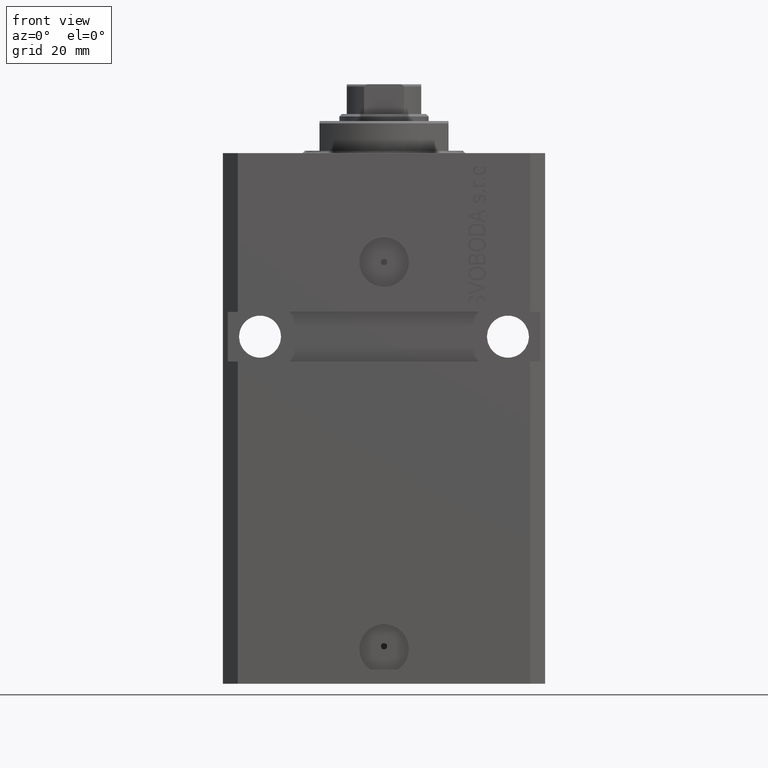
[diagram: clean part render]
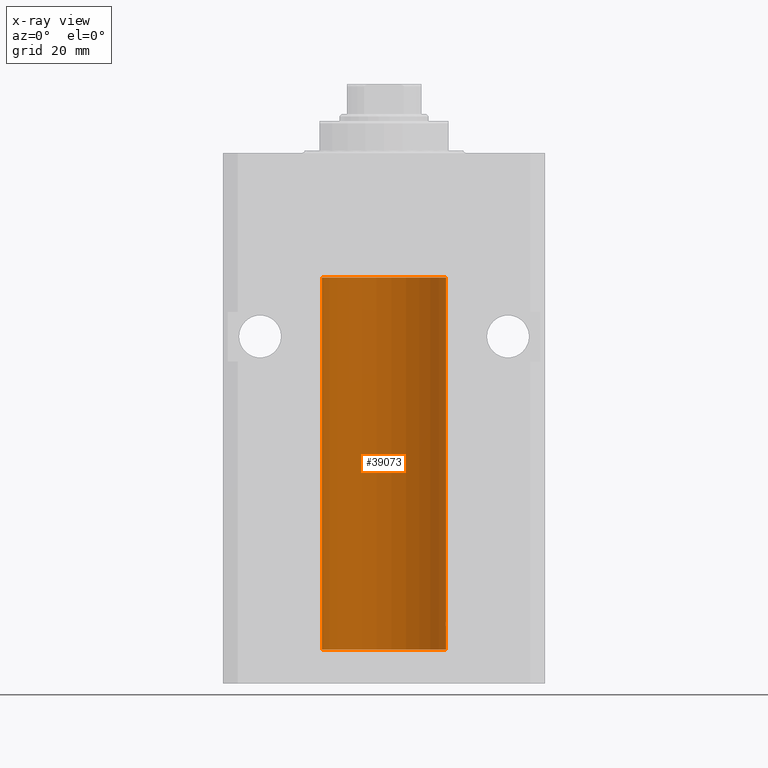
[diagram: x-ray — body ghosted, one internal face saturated and labeled with its STEP entity id]
A machine part, front view, then the same camera in x-ray: the body is ghosted and one INTERNAL B-rep face — a face not visible from any outside direction — is saturated and labeled: STEP entity #39073.
In plain terms, the highlighted cylindrical surface (partial cylindrical patch) has radius 12.5 mm, axis along (0, 0, 1).
Its self-contained STEP definition (entity closure, byte-faithful):
#142 = CARTESIAN_POINT ( 'NONE',  ( 12.48436522214846711, 0.6250000000078848039, -94.99999999999923261 ) ) ;
#1116 = CARTESIAN_POINT ( 'NONE',  ( 12.50000000000017941, 3.868073689162038701E-13, -94.37499999999640465 ) ) ;
#1170 = EDGE_CURVE ( 'NONE', #40725, #36631, #4375, .T. ) ;
#2116 = ORIENTED_EDGE ( 'NONE', *, *, #25616, .T. ) ;
#2447 = CARTESIAN_POINT ( 'NONE',  ( -12.50000000000000000, 1.530808498934191521E-15, -100.0999999999999943 ) ) ;
#3059 = CARTESIAN_POINT ( 'NONE',  ( -12.50000000000000000, 1.530808498934191521E-15, -100.0999999999999943 ) ) ;
#3258 = CARTESIAN_POINT ( 'NONE',  ( 12.49631206032076136, 0.3252904079142934779, -94.44139700214928723 ) ) ;
#4375 = CIRCLE ( 'NONE', #8196, 12.50000000000000000 ) ;
#4545 = EDGE_CURVE ( 'NONE', #15957, #42594, #45645, .T. ) ;
#5693 = CARTESIAN_POINT ( 'NONE',  ( 12.50000000000000000, -1.836039810331332019E-15, -95.62500000000000000 ) ) ;
#6912 = DIRECTION ( 'NONE',  ( 1.000000000000000000, 0.000000000000000000, 0.000000000000000000 ) ) ;
#6987 = VECTOR ( 'NONE', #24875, 1000.000000000000000 ) ;
#7072 = DIRECTION ( 'NONE',  ( -0.000000000000000000, -0.000000000000000000, 1.000000000000000000 ) ) ;
#7140 = CARTESIAN_POINT ( 'NONE',  ( 12.49915742890631876, 0.1636982395582385896, -95.60872397847028026 ) ) ;
#7952 = DIRECTION ( 'NONE',  ( -0.000000000000000000, -0.000000000000000000, 1.000000000000000000 ) ) ;
#8196 = AXIS2_PLACEMENT_3D ( 'NONE', #13536, #31457, #42638 ) ;
#9362 = VECTOR ( 'NONE', #23758, 1000.000000000000000 ) ;
#9445 = VERTEX_POINT ( 'NONE', #5693 ) ;
#10190 = CARTESIAN_POINT ( 'NONE',  ( 12.49999999999999822, 0.1631389616600901760, -94.37500000000024158 ) ) ;
#10733 = DIRECTION ( 'NONE',  ( 0.000000000000000000, 0.000000000000000000, 1.000000000000000000 ) ) ;
#10888 = B_SPLINE_CURVE_WITH_KNOTS ( 'NONE', 3,
 ( #46345, #20384, #7140, #27996, #31579, #12956, #36247, #23961 ),
 .UNSPECIFIED., .F., .F.,
 ( 4, 2, 2, 4 ),
 ( 1.784246692340212412E-18, 0.0002443481056285665750, 0.0004886962112571313068, 0.0009773924225142606621 ),
 .UNSPECIFIED. ) ;
#11768 = CARTESIAN_POINT ( 'NONE',  ( 12.50000000000000000, 0.000000000000000000, -100.0999999999999943 ) ) ;
#12956 = CARTESIAN_POINT ( 'NONE',  ( 12.48809900631782099, 0.5573988467445673001, -95.32640147935475738 ) ) ;
#13536 = CARTESIAN_POINT ( 'NONE',  ( 0.000000000000000000, 0.000000000000000000, -100.0999999999999943 ) ) ;
#15957 = VERTEX_POINT ( 'NONE', #37157 ) ;
#16410 = ORIENTED_EDGE ( 'NONE', *, *, #37849, .T. ) ;
#16892 = EDGE_CURVE ( 'NONE', #33578, #15957, #39929, .T. ) ;
#17825 = CARTESIAN_POINT ( 'NONE',  ( 0.000000000000000000, 0.000000000000000000, -100.0999999999999943 ) ) ;
#17827 = CARTESIAN_POINT ( 'NONE',  ( 12.48436522214888100, 0.6249999999996834754, -94.91847339462351840 ) ) ;
#18050 = FACE_OUTER_BOUND ( 'NONE', #45383, .T. ) ;
#18328 = ORIENTED_EDGE ( 'NONE', *, *, #44283, .T. ) ;
#20384 = CARTESIAN_POINT ( 'NONE',  ( 12.49999999999999822, 0.08262306818362624705, -95.62499999999998579 ) ) ;
#22669 = ORIENTED_EDGE ( 'NONE', *, *, #46392, .F. ) ;
#23054 = CARTESIAN_POINT ( 'NONE',  ( 12.50000000000000000, 0.000000000000000000, -100.0999999999999943 ) ) ;
#23758 = DIRECTION ( 'NONE',  ( -0.000000000000000000, -0.000000000000000000, 1.000000000000000000 ) ) ;
#23961 = CARTESIAN_POINT ( 'NONE',  ( 12.48436522214846711, 0.6250000000078848039, -94.99999999999923261 ) ) ;
#24523 = DIRECTION ( 'NONE',  ( 1.000000000000000000, 0.000000000000000000, 0.000000000000000000 ) ) ;
#24875 = DIRECTION ( 'NONE',  ( -0.000000000000000000, -0.000000000000000000, 1.000000000000000000 ) ) ;
#24994 = CARTESIAN_POINT ( 'NONE',  ( 12.49012055744648997, 0.5002956126656082914, -94.61641710202405875 ) ) ;
#25078 = AXIS2_PLACEMENT_3D ( 'NONE', #36729, #10733, #6912 ) ;
#25616 = EDGE_CURVE ( 'NONE', #9445, #43948, #10888, .T. ) ;
#26577 = CARTESIAN_POINT ( 'NONE',  ( 12.48436522214846711, 0.6250000000078848039, -94.99999999999923261 ) ) ;
#27583 = ORIENTED_EDGE ( 'NONE', *, *, #1170, .F. ) ;
#27996 = CARTESIAN_POINT ( 'NONE',  ( 12.49625698805481022, 0.3151108292486944906, -95.54593695688171806 ) ) ;
#28566 = CARTESIAN_POINT ( 'NONE',  ( 12.48810305280568222, 0.5461368461738485003, -94.68525466142676805 ) ) ;
#28798 = CYLINDRICAL_SURFACE ( 'NONE', #35846, 12.50000000000000000 ) ;
#30245 = ORIENTED_EDGE ( 'NONE', *, *, #4545, .T. ) ;
#31145 = LINE ( 'NONE', #23054, #9362 ) ;
#31457 = DIRECTION ( 'NONE',  ( 0.000000000000000000, 0.000000000000000000, 1.000000000000000000 ) ) ;
#31579 = CARTESIAN_POINT ( 'NONE',  ( 12.49421963472024721, 0.3844519291903572555, -95.49947303647047647 ) ) ;
#32841 = CARTESIAN_POINT ( 'NONE',  ( 12.48520578595314845, 0.6087855079133740466, -94.83656717509346379 ) ) ;
#33578 = VERTEX_POINT ( 'NONE', #1116 ) ;
#35846 = AXIS2_PLACEMENT_3D ( 'NONE', #17825, #7072, #24523 ) ;
#36247 = CARTESIAN_POINT ( 'NONE',  ( 12.48436522214885969, 0.6250000000001505462, -95.16312747540308692 ) ) ;
#36631 = VERTEX_POINT ( 'NONE', #3059 ) ;
#36729 = CARTESIAN_POINT ( 'NONE',  ( 0.000000000000000000, 0.000000000000000000, -25.10000000000000142 ) ) ;
#37157 = CARTESIAN_POINT ( 'NONE',  ( 12.50000000000000000, 0.000000000000000000, -25.10000000000000142 ) ) ;
#37849 = EDGE_CURVE ( 'NONE', #43948, #33578, #44268, .T. ) ;
#39073 = ADVANCED_FACE ( 'NONE', ( #18050 ), #28798, .F. ) ;
#39929 = LINE ( 'NONE', #11768, #45191 ) ;
#40009 = CARTESIAN_POINT ( 'NONE',  ( 12.50000000000000000, 0.000000000000000000, -100.0999999999999943 ) ) ;
#40111 = CARTESIAN_POINT ( 'NONE',  ( -12.50000000000000000, 1.530808498934191521E-15, -25.10000000000000142 ) ) ;
#40725 = VERTEX_POINT ( 'NONE', #40009 ) ;
#42594 = VERTEX_POINT ( 'NONE', #40111 ) ;
#42638 = DIRECTION ( 'NONE',  ( 1.000000000000000000, 0.000000000000000000, 0.000000000000000000 ) ) ;
#43553 = ORIENTED_EDGE ( 'NONE', *, *, #16892, .T. ) ;
#43948 = VERTEX_POINT ( 'NONE', #26577 ) ;
#44268 = B_SPLINE_CURVE_WITH_KNOTS ( 'NONE', 3,
 ( #142, #17827, #32841, #28566, #24994, #3258, #10190, #46920 ),
 .UNSPECIFIED., .F., .F.,
 ( 4, 2, 2, 4 ),
 ( 0.0009773924225142606621, 0.001221629287363811033, 0.001465866152213361404, 0.001954339881912461711 ),
 .UNSPECIFIED. ) ;
#44283 = EDGE_CURVE ( 'NONE', #40725, #9445, #31145, .T. ) ;
#45191 = VECTOR ( 'NONE', #7952, 1000.000000000000000 ) ;
#45383 = EDGE_LOOP ( 'NONE', ( #22669, #27583, #18328, #2116, #16410, #43553, #30245 ) ) ;
#45645 = CIRCLE ( 'NONE', #25078, 12.50000000000000000 ) ;
#46335 = LINE ( 'NONE', #2447, #6987 ) ;
#46345 = CARTESIAN_POINT ( 'NONE',  ( 12.50000000000000000, -1.836039810331332019E-15, -95.62500000000000000 ) ) ;
#46392 = EDGE_CURVE ( 'NONE', #36631, #42594, #46335, .T. ) ;
#46920 = CARTESIAN_POINT ( 'NONE',  ( 12.50000000000017941, 3.868073689162038701E-13, -94.37499999999640465 ) ) ;